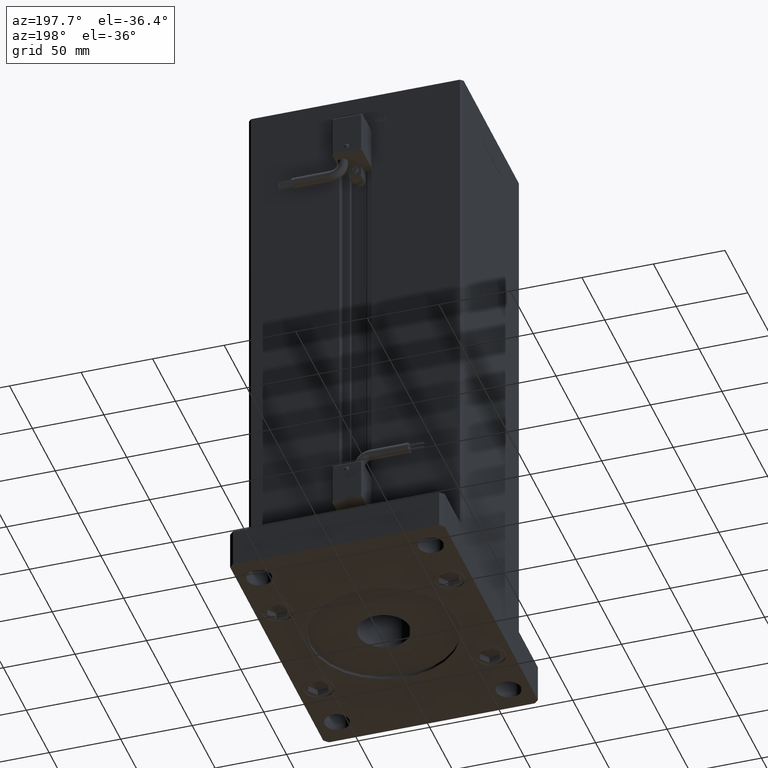
[diagram: clean part render]
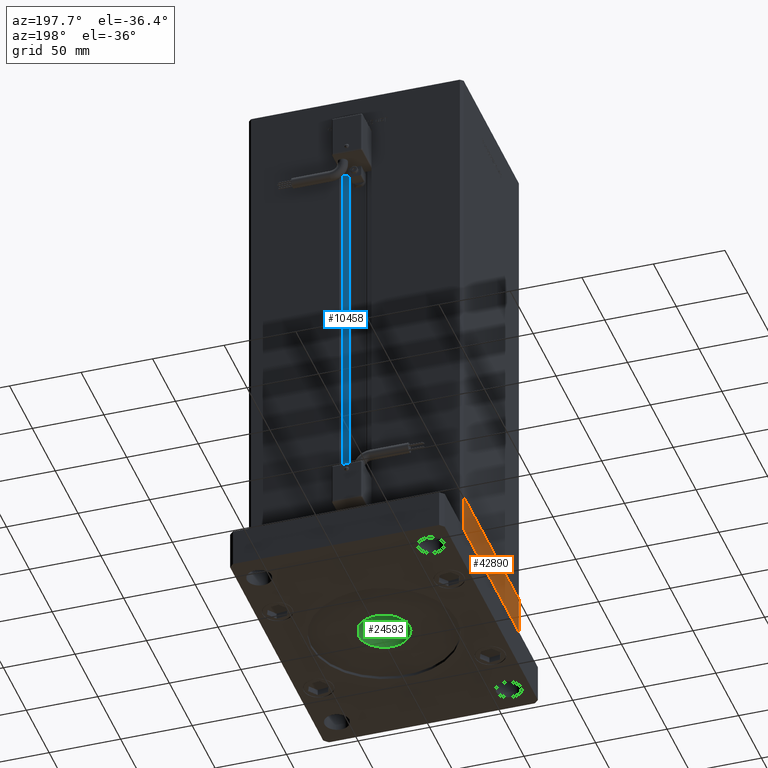
[diagram: same view with three faces highlighted in distinct colors, each labeled with its STEP entity id]
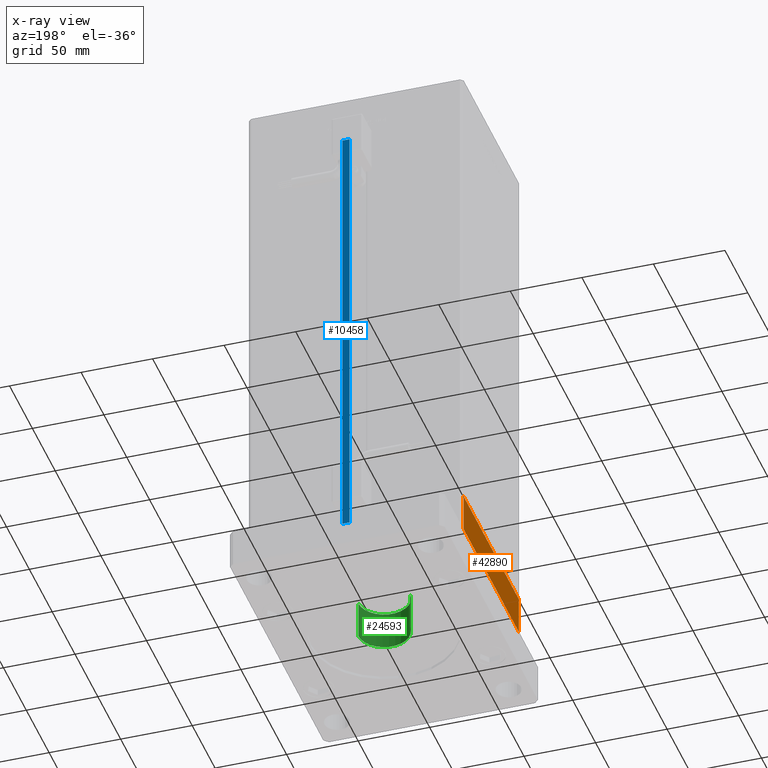
[diagram: x-ray of the same camera — body ghosted, the three highlighted faces saturated]
A machine part, auxiliary view with three faces highlighted in distinct colors.
The next image is the same camera in x-ray (body ghosted, the three faces saturated) — at least one of them is partly hidden behind the body in this view.
Their STEP definitions:

[orange] entity #42890 — the highlighted planar face has unit normal (-1, 0, 0).
#684 = CARTESIAN_POINT ( 'NONE',  ( 74.99999999999992895, 60.50000000000002842, 0.000000000000000000 ) ) ;
#811 = CARTESIAN_POINT ( 'NONE',  ( 75.00000000000001421, -60.50000000000000711, 0.000000000000000000 ) ) ;
#2846 = VERTEX_POINT ( 'NONE', #50200 ) ;
#7531 = VECTOR ( 'NONE', #51475, 1000.000000000000000 ) ;
#7663 = CARTESIAN_POINT ( 'NONE',  ( 74.99999999999992895, 60.50000000000002842, -27.00000000000000000 ) ) ;
#7878 = CARTESIAN_POINT ( 'NONE',  ( 74.99999999999992895, 60.50000000000002842, -27.00000000000000000 ) ) ;
#8015 = EDGE_CURVE ( 'NONE', #2846, #46429, #34571, .T. ) ;
#12252 = DIRECTION ( 'NONE',  ( 0.000000000000000000, 0.000000000000000000, 1.000000000000000000 ) ) ;
#12884 = LINE ( 'NONE', #811, #20003 ) ;
#14354 = ORIENTED_EDGE ( 'NONE', *, *, #22415, .F. ) ;
#14915 = CARTESIAN_POINT ( 'NONE',  ( 75.00000000000001421, -60.50000000000000711, 0.000000000000000000 ) ) ;
#20003 = VECTOR ( 'NONE', #39543, 1000.000000000000000 ) ;
#22037 = VERTEX_POINT ( 'NONE', #14915 ) ;
#22415 = EDGE_CURVE ( 'NONE', #2846, #22037, #39465, .T. ) ;
#26230 = CARTESIAN_POINT ( 'NONE',  ( 75.00000000000001421, -60.50000000000000711, -27.00000000000000000 ) ) ;
#27420 = EDGE_CURVE ( 'NONE', #22037, #46539, #12884, .T. ) ;
#27448 = ORIENTED_EDGE ( 'NONE', *, *, #8015, .T. ) ;
#30515 = DIRECTION ( 'NONE',  ( 1.000000000000000000, 6.881547673296424104E-16, -0.000000000000000000 ) ) ;
#30615 = ORIENTED_EDGE ( 'NONE', *, *, #27420, .F. ) ;
#31083 = PLANE ( 'NONE',  #40668 ) ;
#34453 = VECTOR ( 'NONE', #56626, 1000.000000000000000 ) ;
#34571 = LINE ( 'NONE', #39452, #7531 ) ;
#38630 = LINE ( 'NONE', #7663, #44384 ) ;
#39452 = CARTESIAN_POINT ( 'NONE',  ( 75.00000000000001421, -60.50000000000000711, -27.00000000000000000 ) ) ;
#39465 = LINE ( 'NONE', #52618, #34453 ) ;
#39543 = DIRECTION ( 'NONE',  ( -6.881547673296424104E-16, 1.000000000000000000, 0.000000000000000000 ) ) ;
#40668 = AXIS2_PLACEMENT_3D ( 'NONE', #26230, #30515, #48834 ) ;
#42890 = ADVANCED_FACE ( 'NONE', ( #52570 ), #31083, .T. ) ;
#44384 = VECTOR ( 'NONE', #12252, 1000.000000000000000 ) ;
#45989 = EDGE_CURVE ( 'NONE', #46429, #46539, #38630, .T. ) ;
#46429 = VERTEX_POINT ( 'NONE', #7878 ) ;
#46539 = VERTEX_POINT ( 'NONE', #684 ) ;
#48834 = DIRECTION ( 'NONE',  ( -6.881547673296424104E-16, 1.000000000000000000, 0.000000000000000000 ) ) ;
#50018 = EDGE_LOOP ( 'NONE', ( #30615, #14354, #27448, #56595 ) ) ;
#50200 = CARTESIAN_POINT ( 'NONE',  ( 75.00000000000001421, -60.50000000000000711, -27.00000000000000000 ) ) ;
#51475 = DIRECTION ( 'NONE',  ( -6.881547673296424104E-16, 1.000000000000000000, 0.000000000000000000 ) ) ;
#52570 = FACE_OUTER_BOUND ( 'NONE', #50018, .T. ) ;
#52618 = CARTESIAN_POINT ( 'NONE',  ( 75.00000000000001421, -60.50000000000000711, -27.00000000000000000 ) ) ;
#56595 = ORIENTED_EDGE ( 'NONE', *, *, #45989, .T. ) ;
#56626 = DIRECTION ( 'NONE',  ( 0.000000000000000000, 0.000000000000000000, 1.000000000000000000 ) ) ;

[blue] entity #10458 — the highlighted planar face has unit normal (0, -1, 0).
#2136 = ORIENTED_EDGE ( 'NONE', *, *, #2824, .T. ) ;
#2824 = EDGE_CURVE ( 'NONE', #45347, #40190, #37593, .T. ) ;
#3879 = CARTESIAN_POINT ( 'NONE',  ( 11.25000000000000178, 55.99999999999999289, 0.000000000000000000 ) ) ;
#4870 = AXIS2_PLACEMENT_3D ( 'NONE', #49046, #44757, #40466 ) ;
#6440 = EDGE_CURVE ( 'NONE', #51445, #40190, #38208, .T. ) ;
#10458 = ADVANCED_FACE ( 'NONE', ( #23249 ), #35872, .F. ) ;
#15971 = CARTESIAN_POINT ( 'NONE',  ( 11.25000000000000178, 55.99999999999999289, 317.0000000000000000 ) ) ;
#17554 = VECTOR ( 'NONE', #19876, 1000.000000000000000 ) ;
#19876 = DIRECTION ( 'NONE',  ( -1.000000000000000000, 0.000000000000000000, 0.000000000000000000 ) ) ;
#23249 = FACE_OUTER_BOUND ( 'NONE', #31360, .T. ) ;
#23323 = VECTOR ( 'NONE', #45619, 1000.000000000000000 ) ;
#26437 = EDGE_CURVE ( 'NONE', #45347, #28377, #43184, .T. ) ;
#28377 = VERTEX_POINT ( 'NONE', #30364 ) ;
#28794 = ORIENTED_EDGE ( 'NONE', *, *, #30734, .F. ) ;
#30122 = CARTESIAN_POINT ( 'NONE',  ( 6.183333333334001480, 55.99999999999999289, 317.0000000000000000 ) ) ;
#30364 = CARTESIAN_POINT ( 'NONE',  ( 11.25000000000000178, 55.99999999999999289, 0.000000000000000000 ) ) ;
#30734 = EDGE_CURVE ( 'NONE', #28377, #51445, #43165, .T. ) ;
#31360 = EDGE_LOOP ( 'NONE', ( #28794, #45558, #2136, #55772 ) ) ;
#33012 = CARTESIAN_POINT ( 'NONE',  ( 6.183333333334001480, 55.99999999999999289, 0.000000000000000000 ) ) ;
#35872 = PLANE ( 'NONE',  #4870 ) ;
#37593 = LINE ( 'NONE', #33012, #23323 ) ;
#38208 = LINE ( 'NONE', #55669, #17554 ) ;
#38426 = VECTOR ( 'NONE', #38870, 1000.000000000000000 ) ;
#38870 = DIRECTION ( 'NONE',  ( -0.000000000000000000, -0.000000000000000000, 1.000000000000000000 ) ) ;
#40190 = VERTEX_POINT ( 'NONE', #30122 ) ;
#40466 = DIRECTION ( 'NONE',  ( 0.000000000000000000, -0.000000000000000000, -1.000000000000000000 ) ) ;
#40597 = CARTESIAN_POINT ( 'NONE',  ( 6.183333333334001480, 55.99999999999999289, 0.000000000000000000 ) ) ;
#41917 = VECTOR ( 'NONE', #52055, 1000.000000000000000 ) ;
#43165 = LINE ( 'NONE', #3879, #38426 ) ;
#43184 = LINE ( 'NONE', #46914, #41917 ) ;
#44757 = DIRECTION ( 'NONE',  ( 0.000000000000000000, -1.000000000000000000, 0.000000000000000000 ) ) ;
#45347 = VERTEX_POINT ( 'NONE', #40597 ) ;
#45558 = ORIENTED_EDGE ( 'NONE', *, *, #26437, .F. ) ;
#45619 = DIRECTION ( 'NONE',  ( -0.000000000000000000, -0.000000000000000000, 1.000000000000000000 ) ) ;
#46914 = CARTESIAN_POINT ( 'NONE',  ( 6.183333333334001480, 55.99999999999999289, 0.000000000000000000 ) ) ;
#49046 = CARTESIAN_POINT ( 'NONE',  ( 6.183333333334001480, 55.99999999999999289, 0.000000000000000000 ) ) ;
#51445 = VERTEX_POINT ( 'NONE', #15971 ) ;
#52055 = DIRECTION ( 'NONE',  ( 1.000000000000000000, 0.000000000000000000, 0.000000000000000000 ) ) ;
#55669 = CARTESIAN_POINT ( 'NONE',  ( 0.000000000000000000, 55.99999999999999289, 317.0000000000000000 ) ) ;
#55772 = ORIENTED_EDGE ( 'NONE', *, *, #6440, .F. ) ;

[green] entity #24593 — the highlighted cylindrical surface (edge-blend (fillet) strip) has radius 18 mm, axis along (0, 0, 1).
#1493 = VECTOR ( 'NONE', #33608, 1000.000000000000000 ) ;
#1585 = DIRECTION ( 'NONE',  ( 1.000000000000000000, 0.000000000000000000, 0.000000000000000000 ) ) ;
#3338 = ORIENTED_EDGE ( 'NONE', *, *, #49292, .T. ) ;
#5904 = CARTESIAN_POINT ( 'NONE',  ( -18.00000000000000000, 2.204364238465235428E-15, 2.000000000000000000 ) ) ;
#8120 = FACE_OUTER_BOUND ( 'NONE', #53672, .T. ) ;
#12426 = CARTESIAN_POINT ( 'NONE',  ( 0.000000000000000000, 0.000000000000000000, 0.000000000000000000 ) ) ;
#13513 = DIRECTION ( 'NONE',  ( -0.000000000000000000, -0.000000000000000000, 1.000000000000000000 ) ) ;
#13581 = ORIENTED_EDGE ( 'NONE', *, *, #46955, .F. ) ;
#13632 = CARTESIAN_POINT ( 'NONE',  ( 18.00000000000000000, 0.000000000000000000, 2.000000000000000000 ) ) ;
#13909 = ORIENTED_EDGE ( 'NONE', *, *, #51017, .T. ) ;
#14494 = DIRECTION ( 'NONE',  ( 0.000000000000000000, 0.000000000000000000, 1.000000000000000000 ) ) ;
#15291 = AXIS2_PLACEMENT_3D ( 'NONE', #50584, #14494, #1585 ) ;
#16226 = CIRCLE ( 'NONE', #15291, 18.00000000000000000 ) ;
#17254 = DIRECTION ( 'NONE',  ( -1.000000000000000000, 0.000000000000000000, 0.000000000000000000 ) ) ;
#19708 = VECTOR ( 'NONE', #26908, 1000.000000000000000 ) ;
#22697 = VERTEX_POINT ( 'NONE', #54463 ) ;
#24593 = ADVANCED_FACE ( 'NONE', ( #8120 ), #34206, .F. ) ;
#25404 = AXIS2_PLACEMENT_3D ( 'NONE', #12426, #47392, #26185 ) ;
#26185 = DIRECTION ( 'NONE',  ( 1.000000000000000000, 0.000000000000000000, 0.000000000000000000 ) ) ;
#26671 = VERTEX_POINT ( 'NONE', #13632 ) ;
#26908 = DIRECTION ( 'NONE',  ( -0.000000000000000000, -0.000000000000000000, 1.000000000000000000 ) ) ;
#28724 = VERTEX_POINT ( 'NONE', #5904 ) ;
#29538 = AXIS2_PLACEMENT_3D ( 'NONE', #43637, #13513, #17254 ) ;
#29721 = ORIENTED_EDGE ( 'NONE', *, *, #35796, .F. ) ;
#33608 = DIRECTION ( 'NONE',  ( -0.000000000000000000, -0.000000000000000000, 1.000000000000000000 ) ) ;
#34206 = CYLINDRICAL_SURFACE ( 'NONE', #25404, 18.00000000000000000 ) ;
#35512 = CARTESIAN_POINT ( 'NONE',  ( 18.00000000000000000, 0.000000000000000000, 0.000000000000000000 ) ) ;
#35796 = EDGE_CURVE ( 'NONE', #28724, #26671, #45120, .T. ) ;
#39259 = LINE ( 'NONE', #35512, #19708 ) ;
#42357 = CARTESIAN_POINT ( 'NONE',  ( 18.00000000000000000, 0.000000000000000000, 28.99999999999999645 ) ) ;
#43637 = CARTESIAN_POINT ( 'NONE',  ( 0.000000000000000000, 0.000000000000000000, 2.000000000000000000 ) ) ;
#45120 = CIRCLE ( 'NONE', #29538, 18.00000000000000000 ) ;
#45149 = VERTEX_POINT ( 'NONE', #42357 ) ;
#45368 = CARTESIAN_POINT ( 'NONE',  ( -18.00000000000000000, 2.204364238465235428E-15, 0.000000000000000000 ) ) ;
#46955 = EDGE_CURVE ( 'NONE', #26671, #45149, #39259, .T. ) ;
#47392 = DIRECTION ( 'NONE',  ( -0.000000000000000000, -0.000000000000000000, 1.000000000000000000 ) ) ;
#49292 = EDGE_CURVE ( 'NONE', #28724, #22697, #51071, .T. ) ;
#50584 = CARTESIAN_POINT ( 'NONE',  ( 0.000000000000000000, 0.000000000000000000, 28.99999999999999645 ) ) ;
#51017 = EDGE_CURVE ( 'NONE', #22697, #45149, #16226, .T. ) ;
#51071 = LINE ( 'NONE', #45368, #1493 ) ;
#53672 = EDGE_LOOP ( 'NONE', ( #29721, #3338, #13909, #13581 ) ) ;
#54463 = CARTESIAN_POINT ( 'NONE',  ( -18.00000000000000000, 2.204364238465235428E-15, 28.99999999999999645 ) ) ;